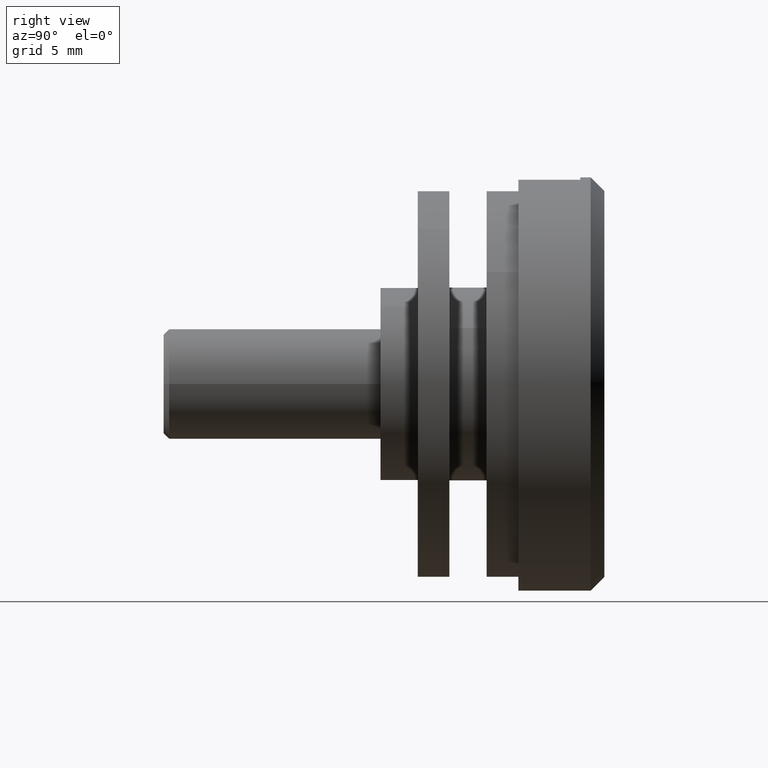
[diagram: clean part render]
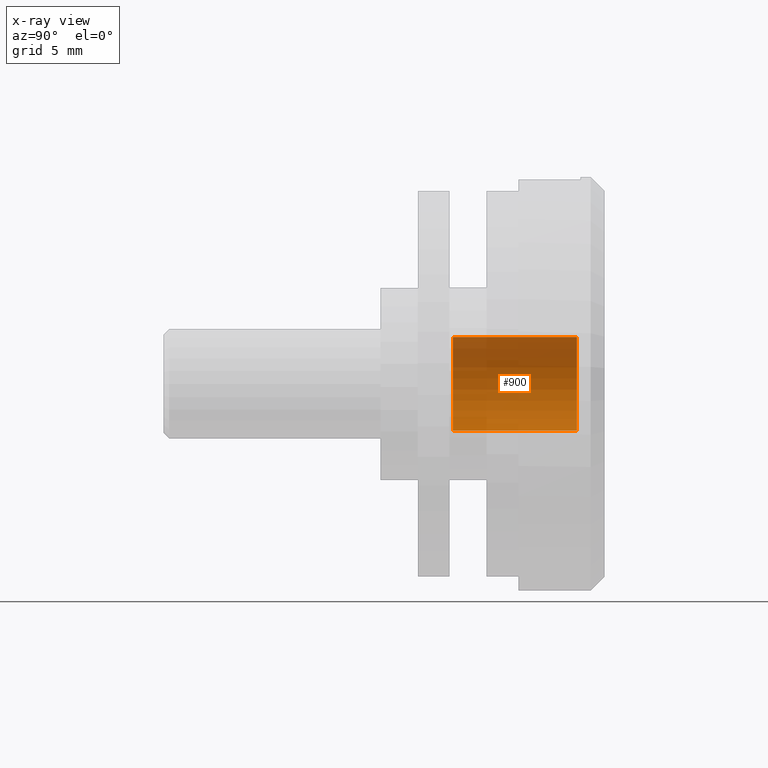
[diagram: x-ray — body ghosted, one internal face saturated and labeled with its STEP entity id]
A machine part, right view, then the same camera in x-ray: the body is ghosted and one INTERNAL B-rep face — a face not visible from any outside direction — is saturated and labeled: STEP entity #900.
In plain terms, the highlighted cylindrical surface (partial cylindrical patch) has radius 3.4 mm, axis along (-0, -1, -0).
Its self-contained STEP definition (entity closure, byte-faithful):
#800 = VERTEX_POINT ( 'NONE', #3437 ) ;
#900 = ADVANCED_FACE ( 'NONE', ( #12714 ), #5318, .F. ) ;
#1020 = LINE ( 'NONE', #2817, #4779 ) ;
#1028 = ORIENTED_EDGE ( 'NONE', *, *, #4090, .F. ) ;
#1291 = AXIS2_PLACEMENT_3D ( 'NONE', #12202, #1297, #11138 ) ;
#1297 = DIRECTION ( 'NONE',  ( -0.0000000000000000000, -1.000000000000000000, -0.0000000000000000000 ) ) ;
#1306 = EDGE_CURVE ( 'NONE', #7115, #8425, #12206, .T. ) ;
#1642 = CARTESIAN_POINT ( 'NONE',  ( 4.163799117100998100E-016, 0.0000000000000000000, 3.399999999999998100 ) ) ;
#2053 = VERTEX_POINT ( 'NONE', #5553 ) ;
#2733 = DIRECTION ( 'NONE',  ( 0.0000000000000000000, 0.0000000000000000000, -1.000000000000000000 ) ) ;
#2817 = CARTESIAN_POINT ( 'NONE',  ( 0.0000000000000000000, 0.0000000000000000000, -3.399999999999998100 ) ) ;
#3312 = CARTESIAN_POINT ( 'NONE',  ( 4.163799117100998100E-016, 9.000000000000001800, 3.399999999999997700 ) ) ;
#3437 = CARTESIAN_POINT ( 'NONE',  ( 0.0000000000000000000, 1.285879139104720700E-016, -3.399999999999998600 ) ) ;
#3682 = CARTESIAN_POINT ( 'NONE',  ( 0.0000000000000000000, 0.0000000000000000000, 0.0000000000000000000 ) ) ;
#3755 = EDGE_LOOP ( 'NONE', ( #12707, #6055, #8134, #1028 ) ) ;
#4090 = EDGE_CURVE ( 'NONE', #8425, #800, #1020, .T. ) ;
#4666 = EDGE_CURVE ( 'NONE', #7115, #2053, #10854, .T. ) ;
#4766 = CIRCLE ( 'NONE', #5601, 3.399999999999998600 ) ;
#4779 = VECTOR ( 'NONE', #12804, 1000.000000000000000 ) ;
#5318 = CYLINDRICAL_SURFACE ( 'NONE', #10268, 3.399999999999998100 ) ;
#5553 = CARTESIAN_POINT ( 'NONE',  ( 4.163799117100999100E-016, 1.285879139104720700E-016, 3.399999999999999000 ) ) ;
#5601 = AXIS2_PLACEMENT_3D ( 'NONE', #8165, #9271, #2733 ) ;
#6055 = ORIENTED_EDGE ( 'NONE', *, *, #4666, .T. ) ;
#6992 = CARTESIAN_POINT ( 'NONE',  ( 0.0000000000000000000, 9.000000000000001800, -3.399999999999997700 ) ) ;
#7115 = VERTEX_POINT ( 'NONE', #3312 ) ;
#7933 = DIRECTION ( 'NONE',  ( 0.0000000000000000000, 0.0000000000000000000, -1.000000000000000000 ) ) ;
#7949 = VECTOR ( 'NONE', #11437, 1000.000000000000000 ) ;
#8022 = DIRECTION ( 'NONE',  ( -0.0000000000000000000, -1.000000000000000000, -0.0000000000000000000 ) ) ;
#8134 = ORIENTED_EDGE ( 'NONE', *, *, #13119, .T. ) ;
#8165 = CARTESIAN_POINT ( 'NONE',  ( 0.0000000000000000000, 1.285879139104720700E-016, 0.0000000000000000000 ) ) ;
#8425 = VERTEX_POINT ( 'NONE', #6992 ) ;
#9271 = DIRECTION ( 'NONE',  ( -0.0000000000000000000, -1.000000000000000000, -0.0000000000000000000 ) ) ;
#10268 = AXIS2_PLACEMENT_3D ( 'NONE', #3682, #8022, #7933 ) ;
#10854 = LINE ( 'NONE', #1642, #7949 ) ;
#11138 = DIRECTION ( 'NONE',  ( 0.0000000000000000000, 0.0000000000000000000, -1.000000000000000000 ) ) ;
#11437 = DIRECTION ( 'NONE',  ( -0.0000000000000000000, -1.000000000000000000, -0.0000000000000000000 ) ) ;
#12202 = CARTESIAN_POINT ( 'NONE',  ( 0.0000000000000000000, 9.000000000000001800, 0.0000000000000000000 ) ) ;
#12206 = CIRCLE ( 'NONE', #1291, 3.399999999999997700 ) ;
#12707 = ORIENTED_EDGE ( 'NONE', *, *, #1306, .F. ) ;
#12714 = FACE_OUTER_BOUND ( 'NONE', #3755, .T. ) ;
#12804 = DIRECTION ( 'NONE',  ( -0.0000000000000000000, -1.000000000000000000, -0.0000000000000000000 ) ) ;
#13119 = EDGE_CURVE ( 'NONE', #2053, #800, #4766, .T. ) ;